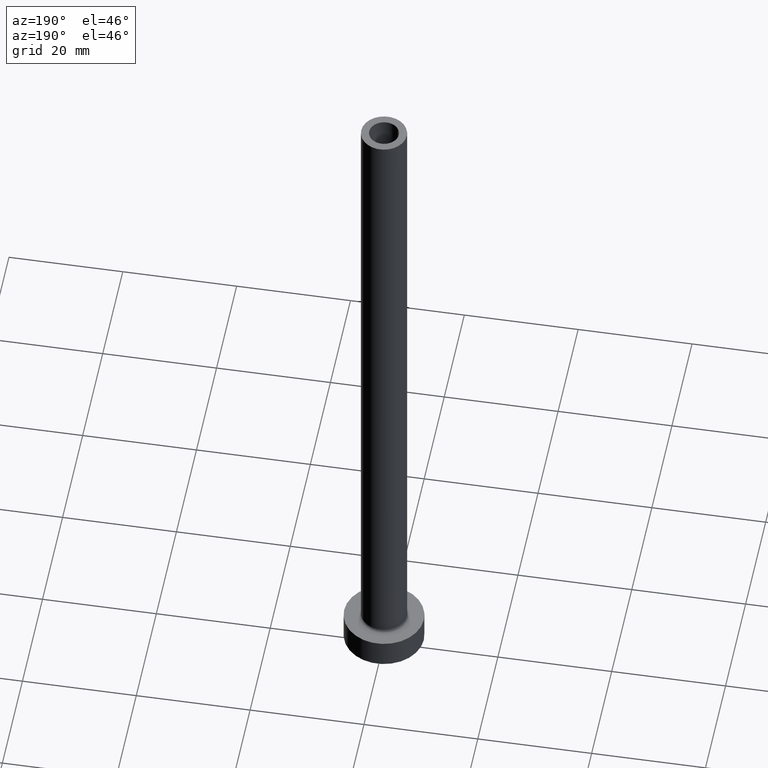
[diagram: clean part render]
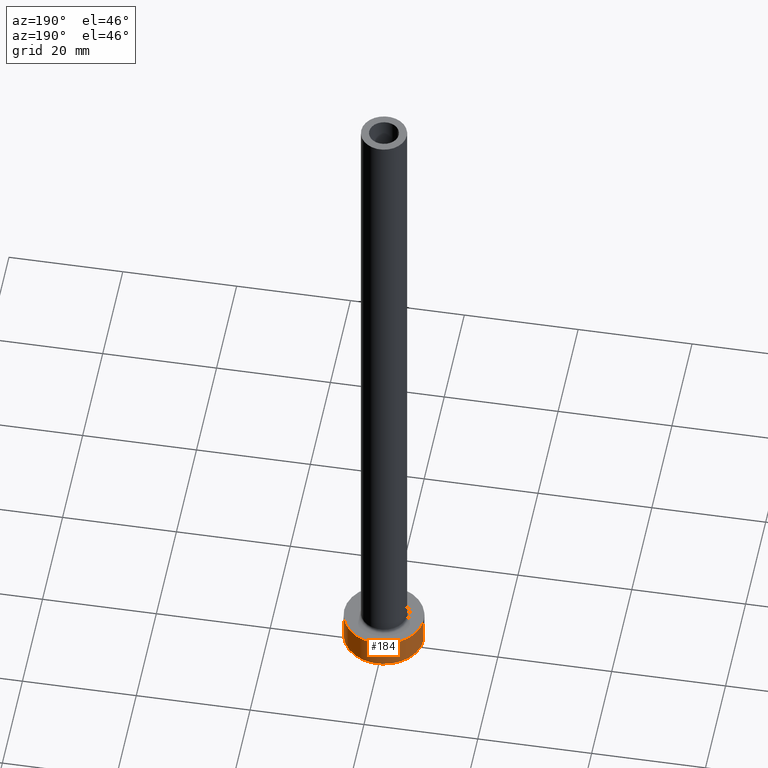
[diagram: same view with one face highlighted and labeled with its STEP entity id]
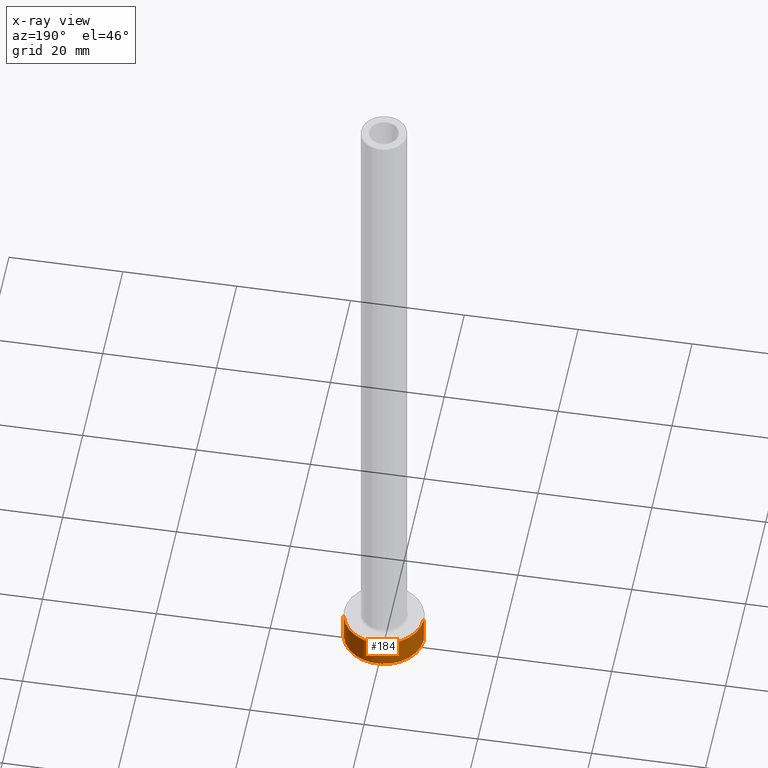
[diagram: x-ray of the same camera — body ghosted, the highlighted face saturated]
A machine part, auxiliary view. The second image highlights one B-rep face of the part: STEP entity #184.
The next image is the same camera in x-ray: the body ghosted, the highlighted face saturated — about 0% of this face is hidden behind the body in this view.
In plain terms, the highlighted cylindrical surface (partial cylindrical patch) has radius 7 mm, axis along (-0, -0, -1).
Its self-contained STEP definition (entity closure, byte-faithful):
#28 = CYLINDRICAL_SURFACE ( 'NONE', #333, 7.000000000000000000 ) ;
#32 = ORIENTED_EDGE ( 'NONE', *, *, #109, .F. ) ;
#54 = CIRCLE ( 'NONE', #310, 7.000000000000000000 ) ;
#60 = CARTESIAN_POINT ( 'NONE',  ( 0.000000000000000000, 0.000000000000000000, 5.000000000000000000 ) ) ;
#85 = CIRCLE ( 'NONE', #349, 7.000000000000000000 ) ;
#88 = DIRECTION ( 'NONE',  ( -0.000000000000000000, -0.000000000000000000, -1.000000000000000000 ) ) ;
#99 = DIRECTION ( 'NONE',  ( 0.000000000000000000, 0.000000000000000000, 1.000000000000000000 ) ) ;
#102 = ORIENTED_EDGE ( 'NONE', *, *, #341, .F. ) ;
#109 = EDGE_CURVE ( 'NONE', #170, #307, #126, .T. ) ;
#126 = LINE ( 'NONE', #229, #404 ) ;
#134 = VERTEX_POINT ( 'NONE', #195 ) ;
#137 = ORIENTED_EDGE ( 'NONE', *, *, #233, .T. ) ;
#162 = CARTESIAN_POINT ( 'NONE',  ( 0.000000000000000000, 0.000000000000000000, 5.000000000000000000 ) ) ;
#164 = DIRECTION ( 'NONE',  ( -0.000000000000000000, -0.000000000000000000, -1.000000000000000000 ) ) ;
#170 = VERTEX_POINT ( 'NONE', #278 ) ;
#176 = EDGE_CURVE ( 'NONE', #385, #134, #302, .T. ) ;
#178 = ORIENTED_EDGE ( 'NONE', *, *, #176, .T. ) ;
#182 = DIRECTION ( 'NONE',  ( 1.000000000000000000, 0.000000000000000000, 0.000000000000000000 ) ) ;
#184 = ADVANCED_FACE ( 'NONE', ( #387 ), #28, .T. ) ;
#195 = CARTESIAN_POINT ( 'NONE',  ( 7.000000000000000000, 8.572527594031473190E-16, 0.000000000000000000 ) ) ;
#216 = VECTOR ( 'NONE', #88, 1000.000000000000000 ) ;
#220 = DIRECTION ( 'NONE',  ( 0.000000000000000000, 0.000000000000000000, 1.000000000000000000 ) ) ;
#229 = CARTESIAN_POINT ( 'NONE',  ( -7.000000000000000000, 0.000000000000000000, 5.000000000000000000 ) ) ;
#233 = EDGE_CURVE ( 'NONE', #134, #307, #85, .T. ) ;
#238 = DIRECTION ( 'NONE',  ( -1.000000000000000000, 0.000000000000000000, 0.000000000000000000 ) ) ;
#278 = CARTESIAN_POINT ( 'NONE',  ( -7.000000000000000000, 0.000000000000000000, 5.000000000000000000 ) ) ;
#300 = DIRECTION ( 'NONE',  ( -0.000000000000000000, -0.000000000000000000, -1.000000000000000000 ) ) ;
#302 = LINE ( 'NONE', #383, #216 ) ;
#307 = VERTEX_POINT ( 'NONE', #436 ) ;
#310 = AXIS2_PLACEMENT_3D ( 'NONE', #60, #99, #316 ) ;
#316 = DIRECTION ( 'NONE',  ( 1.000000000000000000, 0.000000000000000000, 0.000000000000000000 ) ) ;
#333 = AXIS2_PLACEMENT_3D ( 'NONE', #162, #164, #238 ) ;
#341 = EDGE_CURVE ( 'NONE', #385, #170, #54, .T. ) ;
#349 = AXIS2_PLACEMENT_3D ( 'NONE', #460, #220, #182 ) ;
#383 = CARTESIAN_POINT ( 'NONE',  ( 7.000000000000000000, 8.572527594031473190E-16, 5.000000000000000000 ) ) ;
#385 = VERTEX_POINT ( 'NONE', #424 ) ;
#387 = FACE_OUTER_BOUND ( 'NONE', #431, .T. ) ;
#404 = VECTOR ( 'NONE', #300, 1000.000000000000000 ) ;
#424 = CARTESIAN_POINT ( 'NONE',  ( 7.000000000000000000, 8.572527594031473190E-16, 5.000000000000000000 ) ) ;
#431 = EDGE_LOOP ( 'NONE', ( #102, #178, #137, #32 ) ) ;
#436 = CARTESIAN_POINT ( 'NONE',  ( -7.000000000000000000, 0.000000000000000000, 0.000000000000000000 ) ) ;
#460 = CARTESIAN_POINT ( 'NONE',  ( 0.000000000000000000, 0.000000000000000000, 0.000000000000000000 ) ) ;